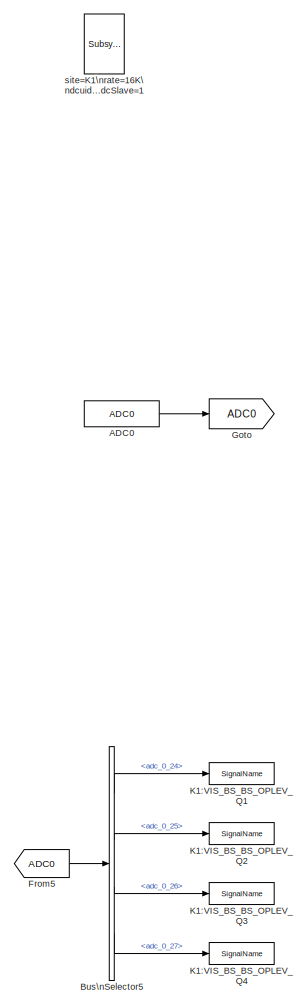
[diagram: root canvas - part 1/3, left side, full height]
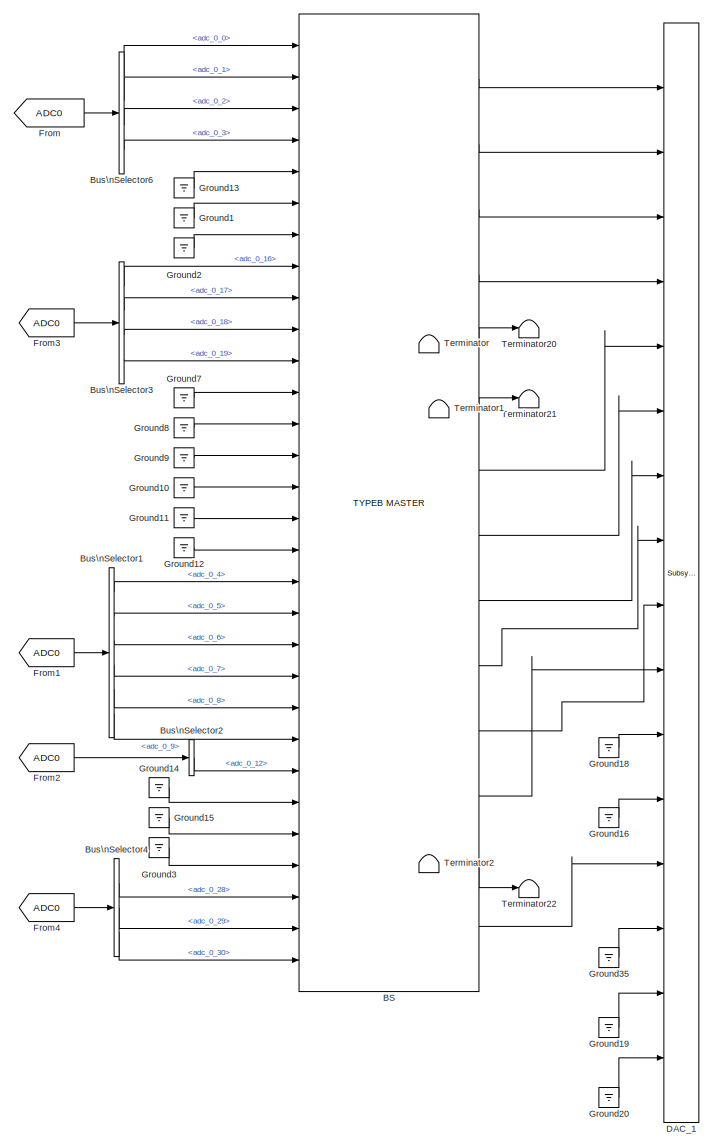
[diagram: root canvas - part 2/3, center side, full height]
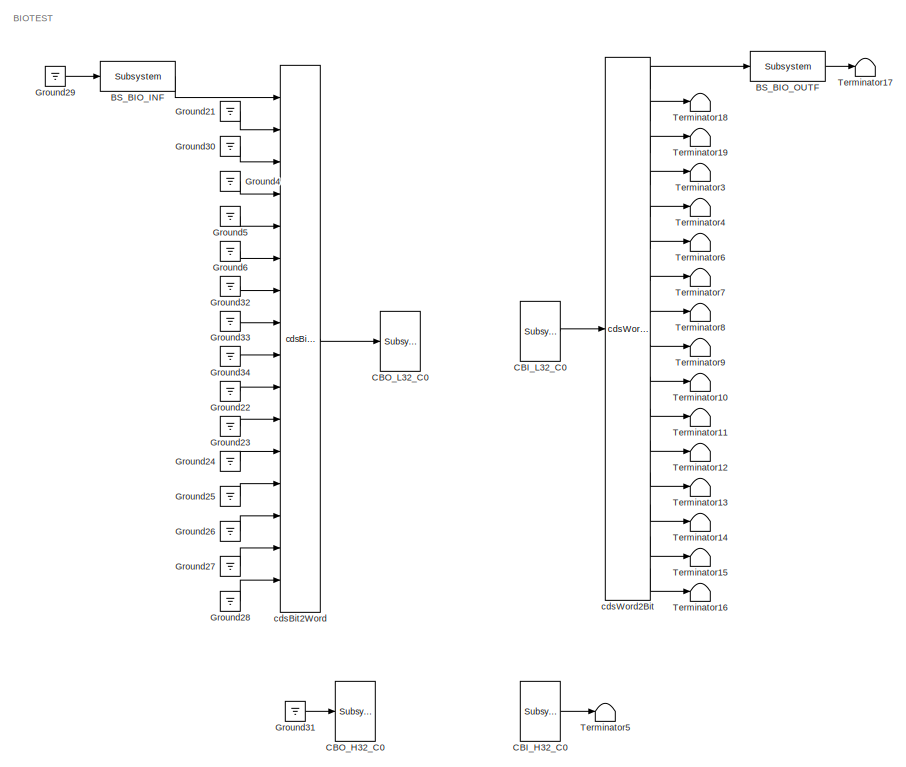
[diagram: root canvas - part 3/3, middle right region]
MODEL k1visbs
KIND model
BLOCK [Reference] ADC0  REF=cdsAdcx0/ADC0
  AttributesFormatString = %<Description>\\n%<Tag>
  Description = type-GSC_16AI64SSA\ncard_num=0
  Ports = [0, 1]
  SID = 271
  SourceBlock = cdsAdcx0/ADC0
  SourceType = SubSystem
  Tag = cdsAdc
BLOCK [Reference] BS  REF=TYPEB_MASTER/TYPEB MASTER
  AttributesFormatString = %<Description>
  Description = TYPEB MASTER
  Ports = [30, 14]
  SID = 473
  SourceBlock = TYPEB_MASTER/TYPEB MASTER
  SourceType = SubSystem
BLOCK [Reference] BS_BIO_INF  REF=cdsEpicsBinIn/Subsystem
  AttributesFormatString = %<Tag>
  Description = Purpose:                                                                            \nCreate an EPICS binary (0 or 1) input channel to the FE realtime controls.          \n                                                                                    \nOperation:                                                                          \nOutputs value from an EPICS ai record. Value is binary i...<+252ch>
  Ports = [1, 1]
  SID = 449
  SourceBlock = cdsEpicsBinIn/Subsystem
  SourceType = SubSystem
  Tag = cdsEpicsBinIn
BLOCK [Reference] BS_BIO_OUTF  REF=cdsEpicsBinIn/Subsystem
  AttributesFormatString = %<Tag>
  Description = Purpose:                                                                            \nCreate an EPICS binary (0 or 1) input channel to the FE realtime controls.          \n                                                                                    \nOperation:                                                                          \nOutputs value from an EPICS ai record. Value is binary i...<+252ch>
  Ports = [1, 1]
  SID = 448
  SourceBlock = cdsEpicsBinIn/Subsystem
  SourceType = SubSystem
  Tag = cdsEpicsBinIn
BLOCK [BusSelector] Bus\nSelector1
  AttributesFormatString = %<Description>
  Description = ADC Selector
  OutputSignals = adc_0_4,adc_0_5,adc_0_6,adc_0_7,adc_0_8,adc_0_9
  Ports = [1, 6]
  SID = 392
BLOCK [BusSelector] Bus\nSelector2
  AttributesFormatString = %<Description>
  Description = ADC Selector
  OutputSignals = adc_0_12
  Ports = [1, 1]
  SID = 403
BLOCK [BusSelector] Bus\nSelector3
  AttributesFormatString = %<Description>
  Description = ADC Selector
  OutputSignals = adc_0_16,adc_0_17,adc_0_18,adc_0_19
  Ports = [1, 4]
  SID = 415
BLOCK [BusSelector] Bus\nSelector4
  AttributesFormatString = %<Description>
  Description = ADC Selector
  OutputSignals = adc_0_28,adc_0_29,adc_0_30
  Ports = [1, 3]
  SID = 417
BLOCK [BusSelector] Bus\nSelector5
  AttributesFormatString = %<Description>
  Description = ADC Selector
  OutputSignals = adc_0_24,adc_0_25,adc_0_26,adc_0_27
  Ports = [1, 4]
  SID = 419
BLOCK [BusSelector] Bus\nSelector6
  AttributesFormatString = %<Description>
  Description = ADC Selector
  OutputSignals = adc_0_0,adc_0_1,adc_0_2,adc_0_3
  Ports = [1, 4]
  SID = 284
BLOCK [Reference] CBI_H32_C0  REF=cdsCDI64/Subsystem
  AttributesFormatString = %<Tag>\\n%<Description>
  Description = card_num=1
  Ports = [0, 1]
  SID = 470
  SourceBlock = cdsCDI64/Subsystem
  SourceType = SubSystem
  Tag = cdsCDI64
BLOCK [Reference] CBI_L32_C0  REF=cdsCDI64/Subsystem
  AttributesFormatString = %<Tag>\\n%<Description>
  Description = card_num=0
  Ports = [0, 1]
  SID = 469
  SourceBlock = cdsCDI64/Subsystem
  SourceType = SubSystem
  Tag = cdsCDI64
BLOCK [Reference] CBO_H32_C0  REF=cdsCDO64/Subsystem
  AttributesFormatString = %<Tag>\\n%<Description>
  Description = card_num=1
  Ports = [1]
  SID = 468
  SourceBlock = cdsCDO64/Subsystem
  SourceType = SubSystem
  Tag = cdsCDO64
BLOCK [Reference] CBO_L32_C0  REF=cdsCDO64/Subsystem
  AttributesFormatString = %<Tag>\\n%<Description>
  Description = card_num=0
  Ports = [1]
  SID = 467
  SourceBlock = cdsCDO64/Subsystem
  SourceType = SubSystem
  Tag = cdsCDO64
BLOCK [Reference] DAC_1  REF=dac/Subsystem  (lib defined in slx_40ef132df75b, slx_b7657ccccc5b, +4 more)
  AttributesFormatString = %<Description>
  Description = type=GSC_16AO16,\ncard_num=0
  Ports = [16]
  SID = 378
  SourceBlock = dac/Subsystem
  SourceType = SubSystem
BLOCK [From] From
  GotoTag = ADC0
  SID = 397
BLOCK [From] From1
  GotoTag = ADC0
  SID = 398
BLOCK [From] From2
  GotoTag = ADC0
  SID = 404
BLOCK [From] From3
  GotoTag = ADC0
  SID = 414
BLOCK [From] From4
  GotoTag = ADC0
  SID = 416
BLOCK [From] From5
  GotoTag = ADC0
  SID = 420
BLOCK [Goto] Goto
  GotoTag = ADC0
  SID = 396
BLOCK [Ground] Ground1
  SID = 372
BLOCK [Ground] Ground10
  SID = 361
BLOCK [Ground] Ground11
  SID = 370
BLOCK [Ground] Ground12
  SID = 371
BLOCK [Ground] Ground13
  SID = 379
BLOCK [Ground] Ground14
  SID = 401
BLOCK [Ground] Ground15
  SID = 402
BLOCK [Ground] Ground16
  SID = 405
BLOCK [Ground] Ground18
  SID = 407
BLOCK [Ground] Ground19
  SID = 476
BLOCK [Ground] Ground2
  SID = 373
BLOCK [Ground] Ground20
  SID = 477
BLOCK [Ground] Ground21
  SID = 466
BLOCK [Ground] Ground22
  SID = 465
BLOCK [Ground] Ground23
  SID = 464
BLOCK [Ground] Ground24
  SID = 463
BLOCK [Ground] Ground25
  SID = 462
BLOCK [Ground] Ground26
  SID = 461
BLOCK [Ground] Ground27
  SID = 460
BLOCK [Ground] Ground28
  SID = 459
BLOCK [Ground] Ground29
  SID = 458
BLOCK [Ground] Ground3
  SID = 418
BLOCK [Ground] Ground30
  SID = 457
BLOCK [Ground] Ground31
  SID = 456
BLOCK [Ground] Ground32
  SID = 455
BLOCK [Ground] Ground33
  SID = 454
BLOCK [Ground] Ground34
  SID = 453
BLOCK [Ground] Ground35
  SID = 478
BLOCK [Ground] Ground4
  SID = 452
BLOCK [Ground] Ground5
  SID = 451
BLOCK [Ground] Ground6
  SID = 450
BLOCK [Ground] Ground7
  SID = 330
BLOCK [Ground] Ground8
  SID = 333
BLOCK [Ground] Ground9
  SID = 360
BLOCK [Reference] K1:VIS_BS_BS_OPLEV_Q1  REF=cdsIPCx/SignalName
  AttributesFormatString = %<Tag>
  Description = Inter-Process Communication via PCI Express network.
  Ports = [1, 2]
  SID = 421
  SourceBlock = cdsIPCx/SignalName
  SourceType = SubSystem
  Tag = cdsIPCx_PCIE
BLOCK [Reference] K1:VIS_BS_BS_OPLEV_Q2  REF=cdsIPCx/SignalName
  AttributesFormatString = %<Tag>
  Description = Inter-Process Communication via PCI Express network.
  Ports = [1, 2]
  SID = 422
  SourceBlock = cdsIPCx/SignalName
  SourceType = SubSystem
  Tag = cdsIPCx_PCIE
BLOCK [Reference] K1:VIS_BS_BS_OPLEV_Q3  REF=cdsIPCx/SignalName
  AttributesFormatString = %<Tag>
  Description = Inter-Process Communication via PCI Express network.
  Ports = [1, 2]
  SID = 423
  SourceBlock = cdsIPCx/SignalName
  SourceType = SubSystem
  Tag = cdsIPCx_PCIE
BLOCK [Reference] K1:VIS_BS_BS_OPLEV_Q4  REF=cdsIPCx/SignalName
  AttributesFormatString = %<Tag>
  Description = Inter-Process Communication via PCI Express network.
  Ports = [1, 2]
  SID = 424
  SourceBlock = cdsIPCx/SignalName
  SourceType = SubSystem
  Tag = cdsIPCx_PCIE
BLOCK [Terminator] Terminator
  SID = 411
BLOCK [Terminator] Terminator1
  SID = 412
BLOCK [Terminator] Terminator10
  SID = 447
BLOCK [Terminator] Terminator11
  SID = 446
BLOCK [Terminator] Terminator12
  SID = 445
BLOCK [Terminator] Terminator13
  SID = 444
BLOCK [Terminator] Terminator14
  SID = 443
BLOCK [Terminator] Terminator15
  SID = 442
BLOCK [Terminator] Terminator16
  SID = 441
BLOCK [Terminator] Terminator17
  SID = 440
BLOCK [Terminator] Terminator18
  SID = 439
BLOCK [Terminator] Terminator19
  SID = 438
BLOCK [Terminator] Terminator2
  SID = 413
BLOCK [Terminator] Terminator20
  SID = 474
BLOCK [Terminator] Terminator21
  SID = 475
BLOCK [Terminator] Terminator22
  SID = 479
BLOCK [Terminator] Terminator3
  SID = 437
BLOCK [Terminator] Terminator4
  SID = 436
BLOCK [Terminator] Terminator5
  SID = 435
BLOCK [Terminator] Terminator6
  SID = 434
BLOCK [Terminator] Terminator7
  SID = 433
BLOCK [Terminator] Terminator8
  SID = 432
BLOCK [Terminator] Terminator9
  SID = 431
BLOCK [Reference] cdsBit2Word  REF=cdsBit2Word/cdsBit2Word
  AttributesFormatString = %<Tag>
  Description = Forms single 16 bit integer from 16 0/1 inputs.
  Ports = [16, 1]
  SID = 430
  SourceBlock = cdsBit2Word/cdsBit2Word
  SourceType = SubSystem
  Tag = cdsBit2Word
BLOCK [Reference] cdsWord2Bit  REF=cdsWord2Bit/cdsWord2Bit
  AttributesFormatString = cdsWord2Bit
  Description = Generate 16 0/1 outputs from single 16-bit integer input
  Ports = [1, 16]
  SID = 429
  SourceBlock = cdsWord2Bit/cdsWord2Bit
  SourceType = SubSystem
  Tag = cdsWord2Bit
BLOCK [Reference] site=K1\nrate=16K\ndcuid=96\nhost=k1pr2\nspecific_cpu=4\nadcSlave=1  REF=cdsParameters/Subsystem
  AttributesFormatString = %<Tag>
  Description = Purpose:                                                                                                                                                                                                                                \nProvide system parameters to the FE code generator to properly configure the generated EPICS names, rep rate of the FE controller, and the Data Acquisition node ID fo...<+2934ch>
  Ports = [1, 1]
  SID = 472
  SourceBlock = cdsParameters/Subsystem
  SourceType = SubSystem
  Tag = cdsParameters
ANNOTATION (root): BIOTEST
LINE ADC0:1 -> Goto:1
LINE BS:1 -> DAC_1:1
LINE BS:10 -> DAC_1:8
LINE BS:11 -> DAC_1:9
LINE BS:12 -> DAC_1:10
LINE BS:13 -> Terminator22:1
LINE BS:14 -> DAC_1:13
LINE BS:2 -> DAC_1:2
LINE BS:3 -> DAC_1:3
LINE BS:4 -> DAC_1:4
LINE BS:5 -> Terminator20:1
LINE BS:6 -> Terminator21:1
LINE BS:7 -> DAC_1:5
LINE BS:8 -> DAC_1:6
LINE BS:9 -> DAC_1:7
LINE BS_BIO_INF:1 -> cdsBit2Word:1
LINE BS_BIO_OUTF:1 -> Terminator17:1
LINE Bus\nSelector1:1 -> BS:18
LINE Bus\nSelector1:2 -> BS:19
LINE Bus\nSelector1:3 -> BS:20
LINE Bus\nSelector1:4 -> BS:21
LINE Bus\nSelector1:5 -> BS:22
LINE Bus\nSelector1:6 -> BS:23
LINE Bus\nSelector2:1 -> BS:24
LINE Bus\nSelector3:1 -> BS:8
LINE Bus\nSelector3:2 -> BS:9
LINE Bus\nSelector3:3 -> BS:10
LINE Bus\nSelector3:4 -> BS:11
LINE Bus\nSelector4:1 -> BS:28
LINE Bus\nSelector4:2 -> BS:29
LINE Bus\nSelector4:3 -> BS:30
LINE Bus\nSelector5:1 -> K1:VIS_BS_BS_OPLEV_Q1:1
LINE Bus\nSelector5:2 -> K1:VIS_BS_BS_OPLEV_Q2:1
LINE Bus\nSelector5:3 -> K1:VIS_BS_BS_OPLEV_Q3:1
LINE Bus\nSelector5:4 -> K1:VIS_BS_BS_OPLEV_Q4:1
LINE Bus\nSelector6:1 -> BS:1
LINE Bus\nSelector6:2 -> BS:2
LINE Bus\nSelector6:3 -> BS:3
LINE Bus\nSelector6:4 -> BS:4
LINE CBI_H32_C0:1 -> Terminator5:1
LINE CBI_L32_C0:1 -> cdsWord2Bit:1
LINE From1:1 -> Bus\nSelector1:1
LINE From2:1 -> Bus\nSelector2:1
LINE From3:1 -> Bus\nSelector3:1
LINE From4:1 -> Bus\nSelector4:1
LINE From5:1 -> Bus\nSelector5:1
LINE From:1 -> Bus\nSelector6:1
LINE Ground10:1 -> BS:15
LINE Ground11:1 -> BS:16
LINE Ground12:1 -> BS:17
LINE Ground13:1 -> BS:5
LINE Ground14:1 -> BS:25
LINE Ground15:1 -> BS:26
LINE Ground16:1 -> DAC_1:12
LINE Ground18:1 -> DAC_1:11
LINE Ground19:1 -> DAC_1:15
LINE Ground1:1 -> BS:6
LINE Ground20:1 -> DAC_1:16
LINE Ground21:1 -> cdsBit2Word:2
LINE Ground22:1 -> cdsBit2Word:10
LINE Ground23:1 -> cdsBit2Word:11
LINE Ground24:1 -> cdsBit2Word:12
LINE Ground25:1 -> cdsBit2Word:13
LINE Ground26:1 -> cdsBit2Word:14
LINE Ground27:1 -> cdsBit2Word:15
LINE Ground28:1 -> cdsBit2Word:16
LINE Ground29:1 -> BS_BIO_INF:1
LINE Ground2:1 -> BS:7
LINE Ground30:1 -> cdsBit2Word:3
LINE Ground31:1 -> CBO_H32_C0:1
LINE Ground32:1 -> cdsBit2Word:7
LINE Ground33:1 -> cdsBit2Word:8
LINE Ground34:1 -> cdsBit2Word:9
LINE Ground35:1 -> DAC_1:14
LINE Ground3:1 -> BS:27
LINE Ground4:1 -> cdsBit2Word:4
LINE Ground5:1 -> cdsBit2Word:5
LINE Ground6:1 -> cdsBit2Word:6
LINE Ground7:1 -> BS:12
LINE Ground8:1 -> BS:13
LINE Ground9:1 -> BS:14
LINE cdsBit2Word:1 -> CBO_L32_C0:1
LINE cdsWord2Bit:1 -> BS_BIO_OUTF:1
LINE cdsWord2Bit:10 -> Terminator10:1
LINE cdsWord2Bit:11 -> Terminator11:1
LINE cdsWord2Bit:12 -> Terminator12:1
LINE cdsWord2Bit:13 -> Terminator13:1
LINE cdsWord2Bit:14 -> Terminator14:1
LINE cdsWord2Bit:15 -> Terminator15:1
LINE cdsWord2Bit:16 -> Terminator16:1
LINE cdsWord2Bit:2 -> Terminator18:1
LINE cdsWord2Bit:3 -> Terminator19:1
LINE cdsWord2Bit:4 -> Terminator3:1
LINE cdsWord2Bit:5 -> Terminator4:1
LINE cdsWord2Bit:6 -> Terminator6:1
LINE cdsWord2Bit:7 -> Terminator7:1
LINE cdsWord2Bit:8 -> Terminator8:1
LINE cdsWord2Bit:9 -> Terminator9:1
